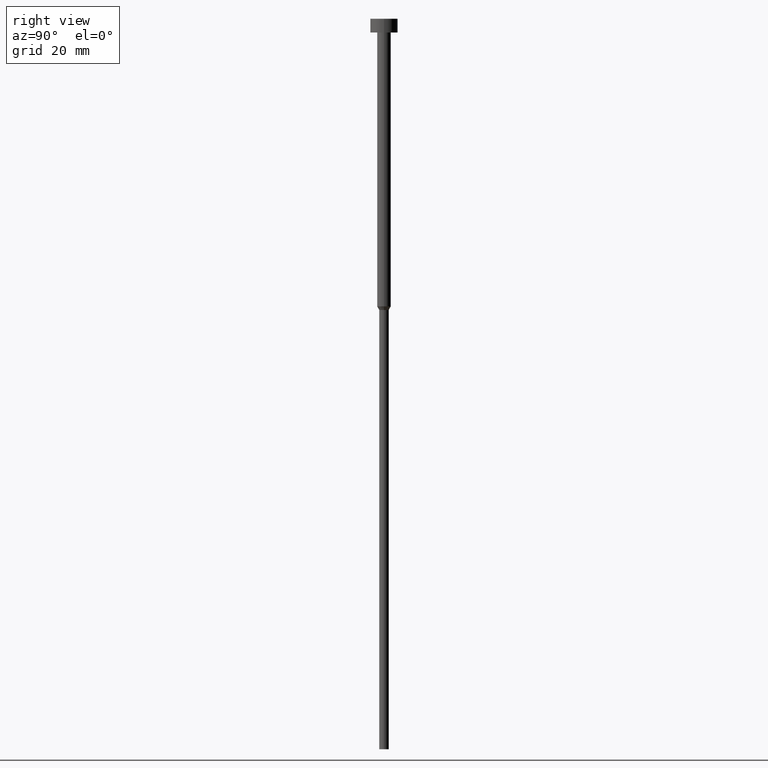
[diagram: clean part render]
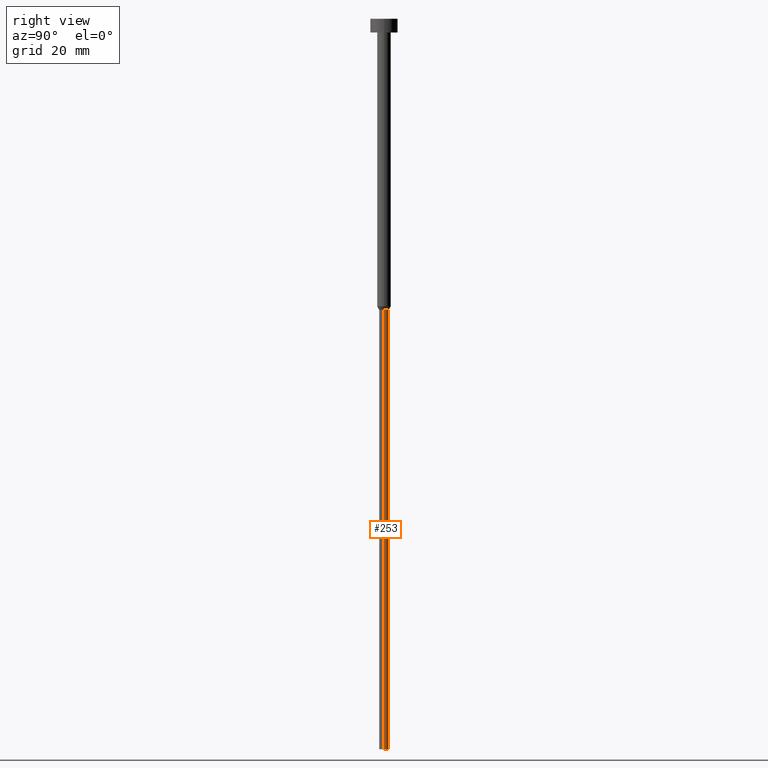
[diagram: same view with one face highlighted and labeled with its STEP entity id]
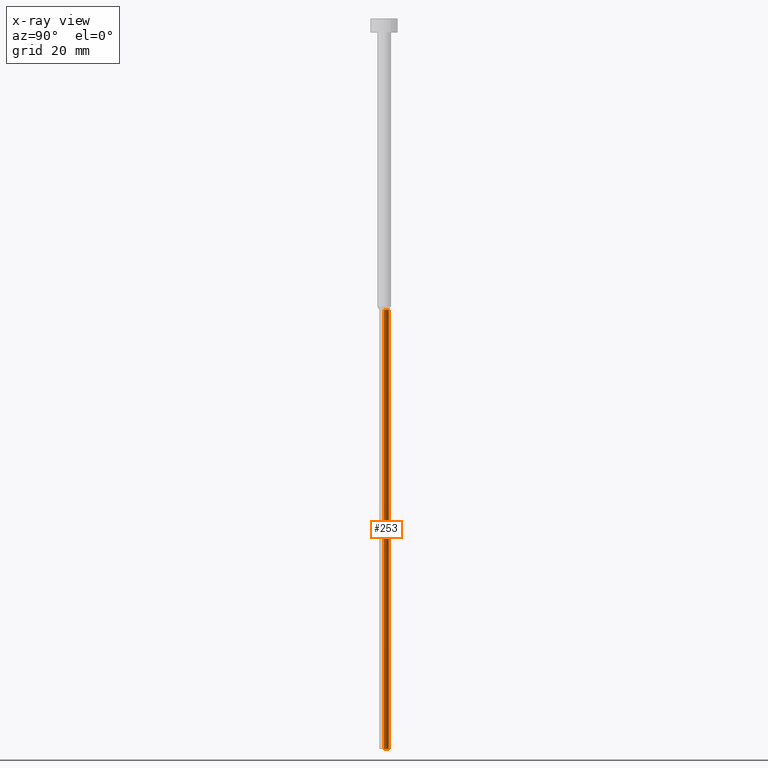
[diagram: x-ray of the same camera — body ghosted, the highlighted face saturated]
A machine part, right view. The second image highlights one B-rep face of the part: STEP entity #253.
The next image is the same camera in x-ray: the body ghosted, the highlighted face saturated — about 0% of this face is hidden behind the body in this view.
In plain terms, the highlighted cylindrical surface (edge-blend (fillet) strip) has radius 1.05 mm, axis along (-0, -0, 1).
Its self-contained STEP definition (entity closure, byte-faithful):
#2 = EDGE_CURVE ( 'NONE', #33, #271, #21, .T. ) ;
#8 = CARTESIAN_POINT ( 'NONE',  ( 0.000000000000000000, 0.000000000000000000, 0.000000000000000000 ) ) ;
#14 = AXIS2_PLACEMENT_3D ( 'NONE', #322, #120, #340 ) ;
#21 = LINE ( 'NONE', #274, #55 ) ;
#33 = VERTEX_POINT ( 'NONE', #207 ) ;
#45 = CARTESIAN_POINT ( 'NONE',  ( 1.050000000000000044, 0.000000000000000000, -160.0000000000000000 ) ) ;
#55 = VECTOR ( 'NONE', #108, 1000.000000000000000 ) ;
#57 = EDGE_CURVE ( 'NONE', #196, #33, #163, .T. ) ;
#73 = EDGE_CURVE ( 'NONE', #132, #271, #307, .T. ) ;
#108 = DIRECTION ( 'NONE',  ( -0.000000000000000000, -0.000000000000000000, 1.000000000000000000 ) ) ;
#120 = DIRECTION ( 'NONE',  ( -0.000000000000000000, -0.000000000000000000, 1.000000000000000000 ) ) ;
#132 = VERTEX_POINT ( 'NONE', #338 ) ;
#140 = DIRECTION ( 'NONE',  ( 1.000000000000000000, 0.000000000000000000, 0.000000000000000000 ) ) ;
#144 = CYLINDRICAL_SURFACE ( 'NONE', #282, 1.050000000000000044 ) ;
#154 = ORIENTED_EDGE ( 'NONE', *, *, #73, .F. ) ;
#160 = DIRECTION ( 'NONE',  ( -0.000000000000000000, -0.000000000000000000, 1.000000000000000000 ) ) ;
#163 = CIRCLE ( 'NONE', #14, 1.050000000000000044 ) ;
#166 = LINE ( 'NONE', #201, #254 ) ;
#185 = AXIS2_PLACEMENT_3D ( 'NONE', #285, #258, #140 ) ;
#196 = VERTEX_POINT ( 'NONE', #45 ) ;
#201 = CARTESIAN_POINT ( 'NONE',  ( 1.050000000000000044, 0.000000000000000000, 0.000000000000000000 ) ) ;
#207 = CARTESIAN_POINT ( 'NONE',  ( -1.050000000000000044, 1.285879139104720978E-16, -160.0000000000000000 ) ) ;
#208 = ORIENTED_EDGE ( 'NONE', *, *, #2, .T. ) ;
#213 = EDGE_LOOP ( 'NONE', ( #352, #208, #154, #294 ) ) ;
#215 = CARTESIAN_POINT ( 'NONE',  ( -1.050000000000000044, 1.285879139104720978E-16, -63.77942286340599054 ) ) ;
#235 = DIRECTION ( 'NONE',  ( -0.000000000000000000, -0.000000000000000000, 1.000000000000000000 ) ) ;
#253 = ADVANCED_FACE ( 'NONE', ( #280 ), #144, .T. ) ;
#254 = VECTOR ( 'NONE', #235, 1000.000000000000000 ) ;
#258 = DIRECTION ( 'NONE',  ( -0.000000000000000000, -0.000000000000000000, 1.000000000000000000 ) ) ;
#271 = VERTEX_POINT ( 'NONE', #215 ) ;
#274 = CARTESIAN_POINT ( 'NONE',  ( -1.050000000000000044, 1.285879139104720978E-16, 0.000000000000000000 ) ) ;
#280 = FACE_OUTER_BOUND ( 'NONE', #213, .T. ) ;
#282 = AXIS2_PLACEMENT_3D ( 'NONE', #8, #160, #301 ) ;
#283 = EDGE_CURVE ( 'NONE', #196, #132, #166, .T. ) ;
#285 = CARTESIAN_POINT ( 'NONE',  ( 0.000000000000000000, 0.000000000000000000, -63.77942286340599054 ) ) ;
#294 = ORIENTED_EDGE ( 'NONE', *, *, #283, .F. ) ;
#301 = DIRECTION ( 'NONE',  ( 1.000000000000000000, 0.000000000000000000, 0.000000000000000000 ) ) ;
#307 = CIRCLE ( 'NONE', #185, 1.050000000000000044 ) ;
#322 = CARTESIAN_POINT ( 'NONE',  ( 0.000000000000000000, 0.000000000000000000, -160.0000000000000000 ) ) ;
#338 = CARTESIAN_POINT ( 'NONE',  ( 1.050000000000000044, 0.000000000000000000, -63.77942286340599054 ) ) ;
#340 = DIRECTION ( 'NONE',  ( 1.000000000000000000, 0.000000000000000000, 0.000000000000000000 ) ) ;
#352 = ORIENTED_EDGE ( 'NONE', *, *, #57, .T. ) ;